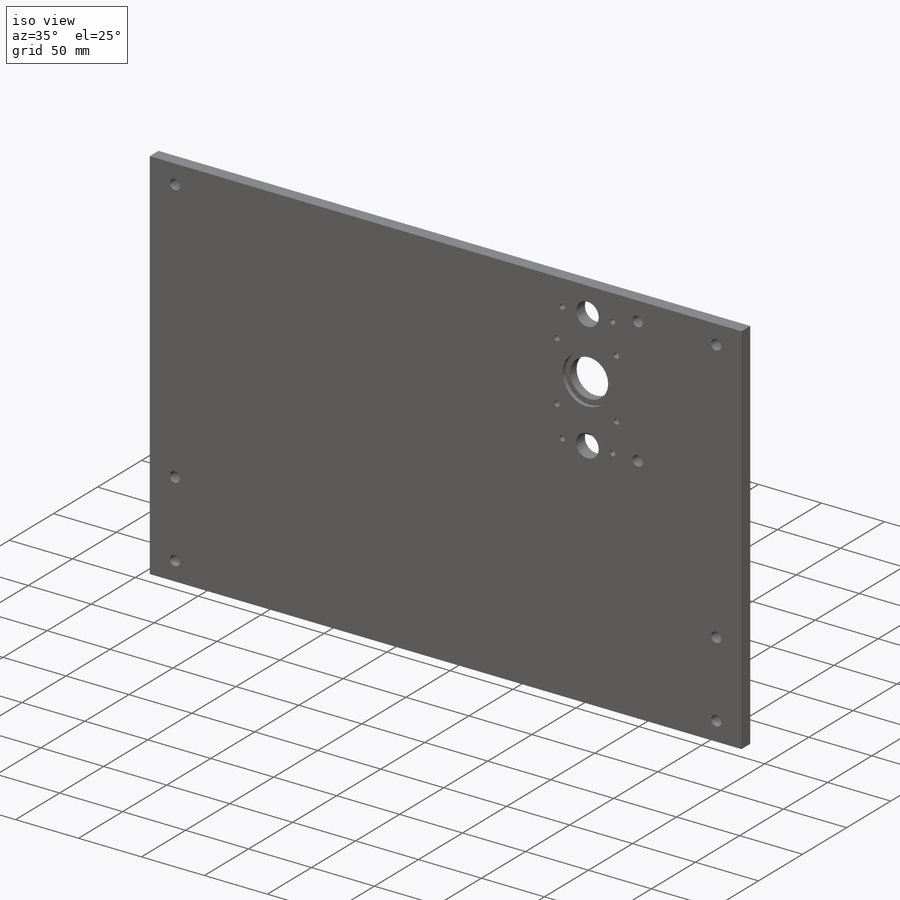
[diagram: iso view]
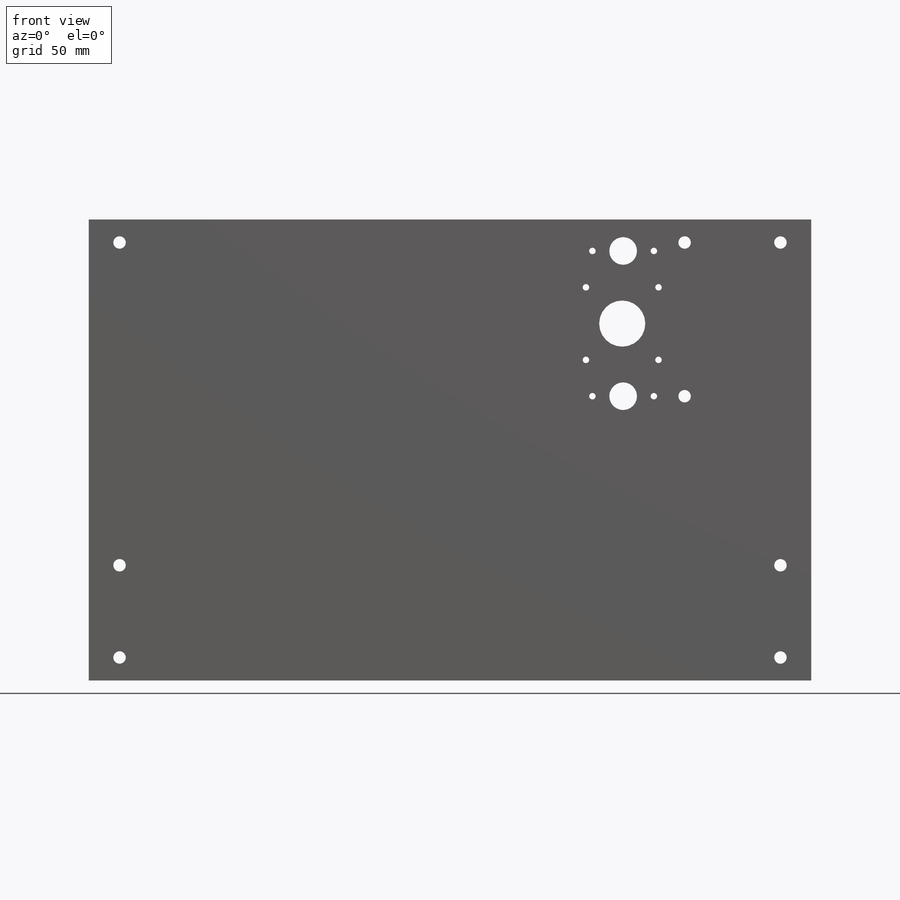
[diagram: front view]
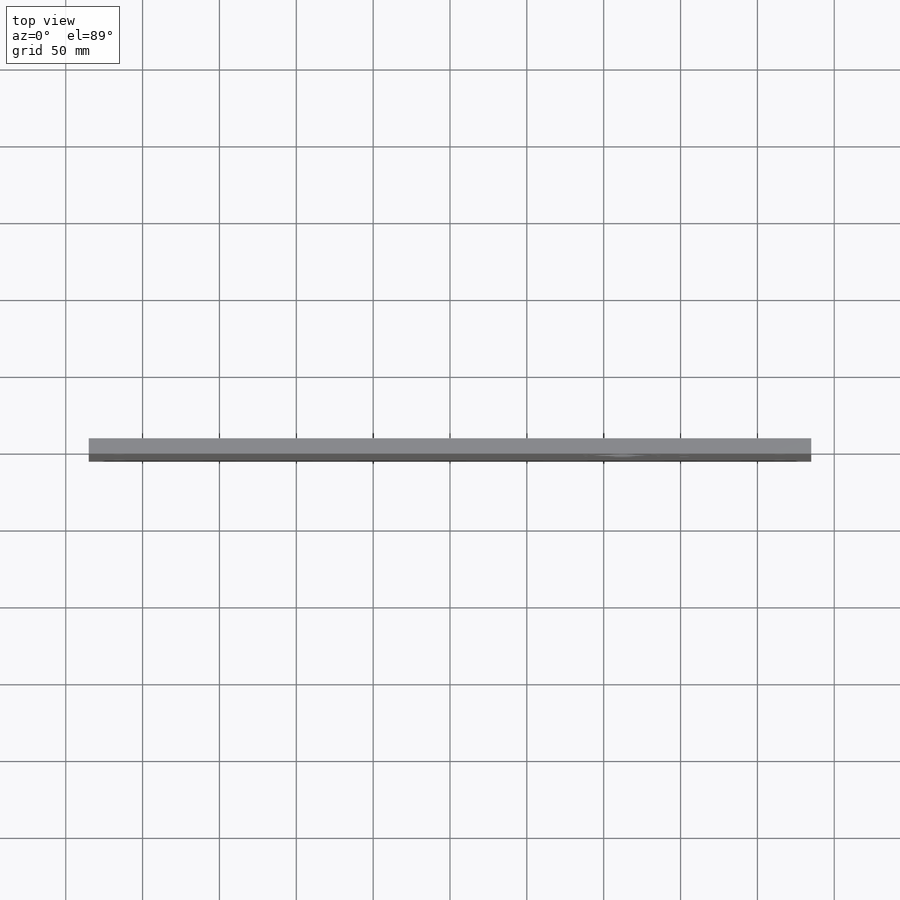
[diagram: top view]
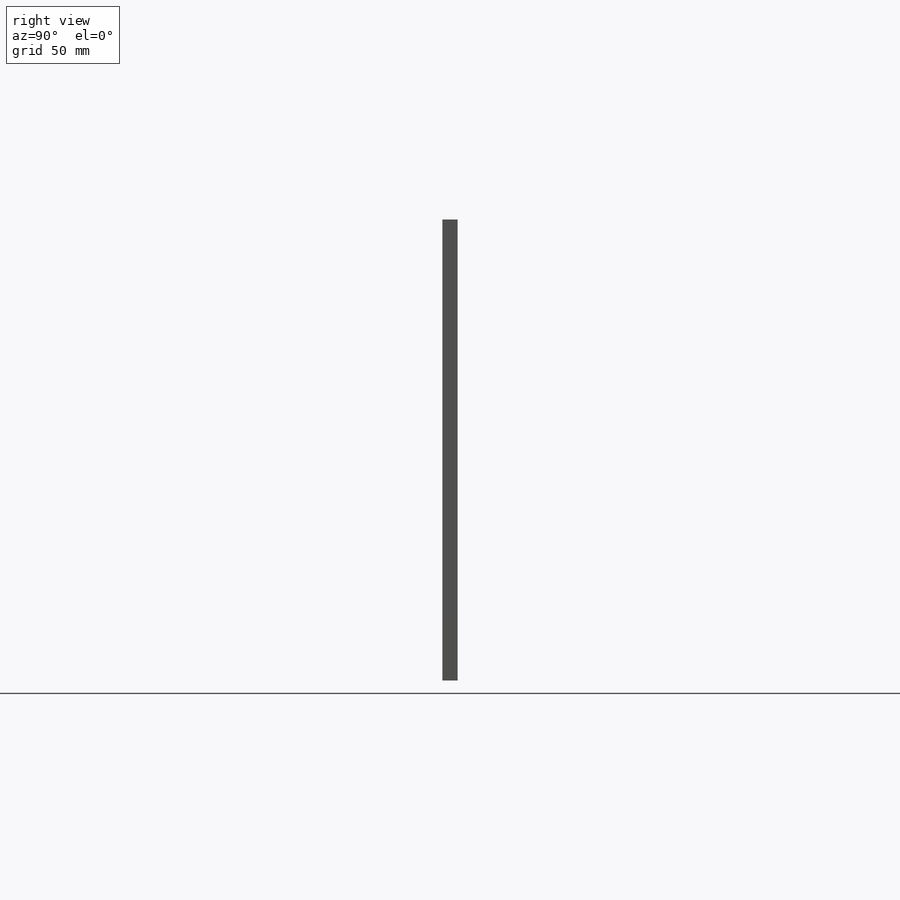
[diagram: right view]
SOLIDWORKS PART (.sldprt)
format: sldprt  version: not decoded by parser v0  size: 489,472 bytes
history: native  units: mm
features: sketch x7, cut_extrude x6, material x1, extrude x1 (+11 scaffold rows collapsed)
feature tree (26):
  scaffold x11  (default folders/planes/origin — collapsed)
  material  "6061 Alloy"
  sketch  "Sketch2"  dims[D1=470.0mm D2=300.0mm]
  extrude  "Boss-Extrude1"  Depth=10mm
  sketch  "Sketch3"  dims[D5=8.1mm D6=8.1mm D7=8.1mm D8=8.1mm D10=8.1mm D11=8.1mm D1=20.0mm D2=15.0mm D3=60.0mm D4=20.0mm D9=15.0mm]
  cut_extrude  "Cut-Extrude1"  Depth=10mm
  sketch  "Sketch4"  dims[D4=18.0mm D5=18.0mm D8=4.2mm D9=4.2mm D12=4.2mm D13=4.2mm D1=185.0mm D2=94.5mm D3=347.65mm D6=20.0mm D7=20.0mm D10=20.0mm D11=20.0mm]
  cut_extrude  "Cut-Extrude2"  [1 undecoded]
  sketch  "Sketch5"  dims[c1.D1=18.0mm c1.D4=8.1mm c1.D5=8.1mm c2.D1=40.0mm c2.D2=15.0mm c2.D3=100.0mm]
  cut_extrude  "Cut-Extrude3"  [1 undecoded]
  sketch  "Sketch7"  dims[D1=38.2mm D2=0.6mm D3=47.25mm]
  cut_extrude  "Cut-Extrude5"  Depth=3mm
  sketch  "Sketch8"  dims[D1=30.0mm]
  cut_extrude  "Cut-Extrude6"  [1 undecoded]
  sketch  "Sketch9"  dims[D3=4.2mm D4=4.2mm D5=4.2mm D6=4.2mm D1=47.2mm D2=47.2mm]
  cut_extrude  "Cut-Extrude7"  [1 undecoded]
decode coverage: 10 of 14 modeling features carry decoded parameters
note: 4 parameter values undecoded
summary: no parameter record found for 4 features
note: suppression state not decoded; provenance and decode notes live in map.json
